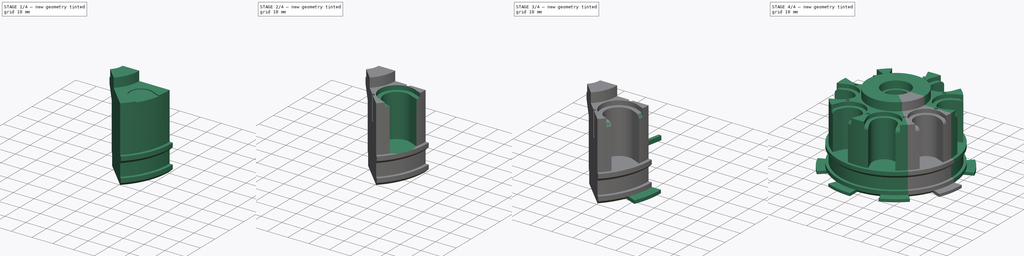
[diagram: build sequence overview — one tinted view per stage of 4, left to right]
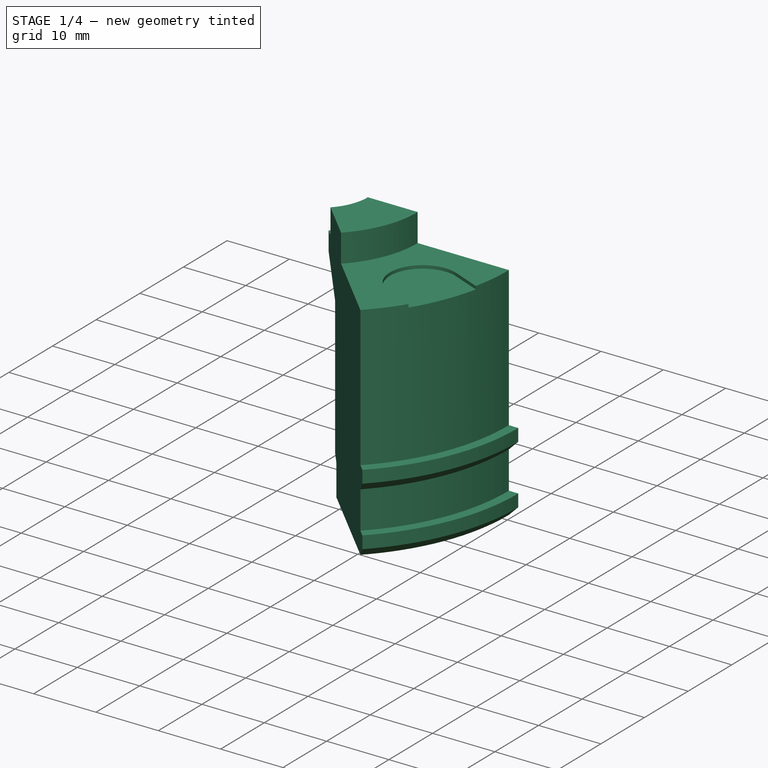
[diagram: stage 1 of 4 — iso view after this stage's code; geometry added in this stage tinted green]
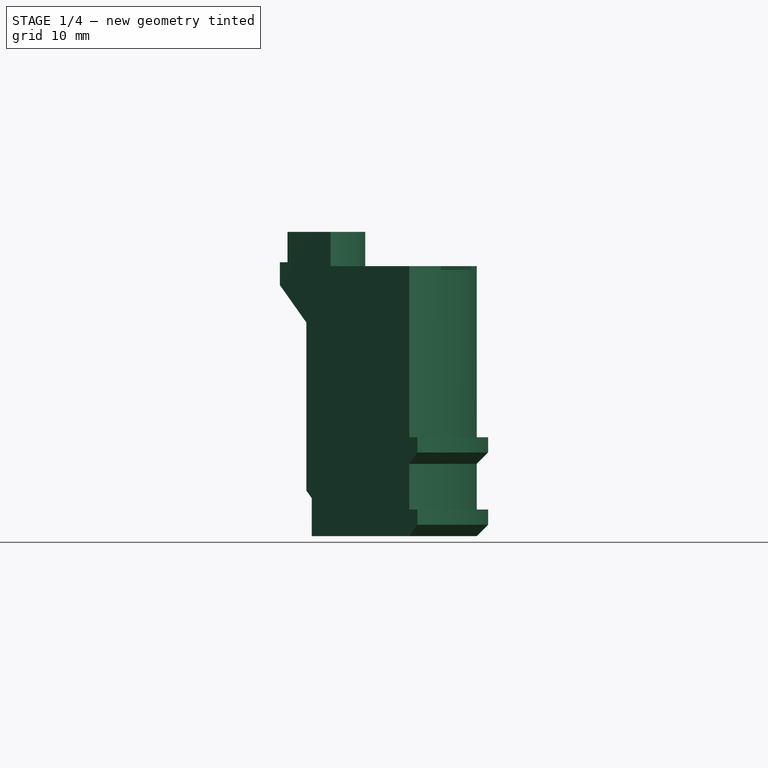
[diagram: stage 1 of 4 — front view after this stage's code; geometry added in this stage tinted green]
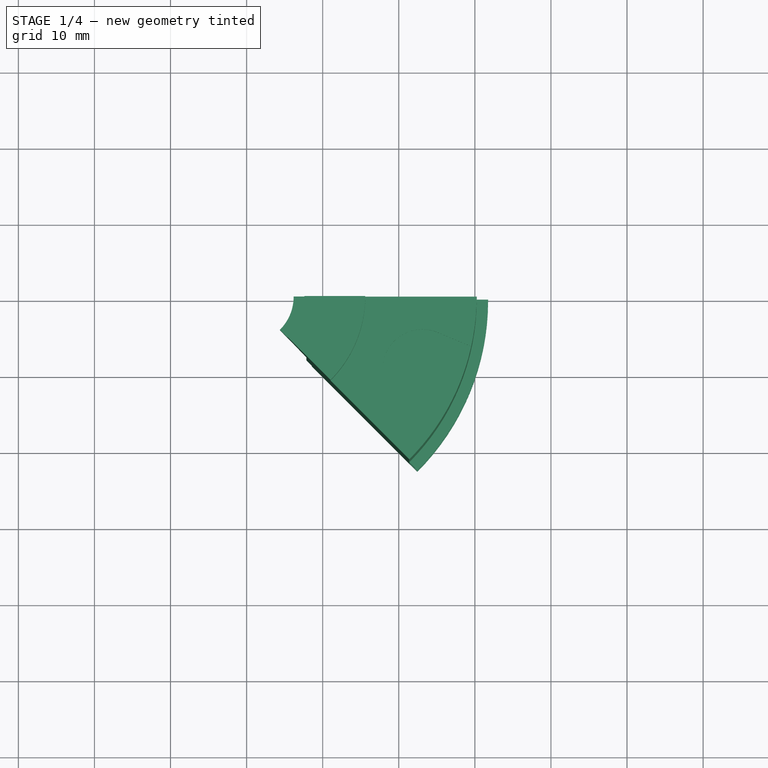
[diagram: stage 1 of 4 — top view after this stage's code; geometry added in this stage tinted green]
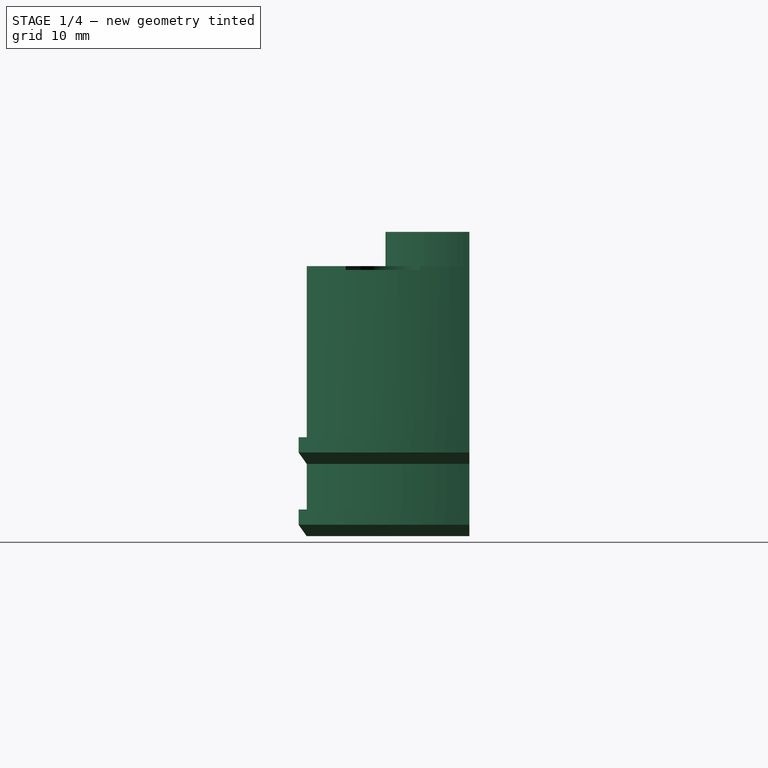
[diagram: stage 1 of 4 — right view after this stage's code; geometry added in this stage tinted green]
FCSTD DOCUMENT  (FreeCAD 0.19R22262 (Git))
Label: ToolChangerHolder_V2_Seg
License: All rights reserved
LicenseURL: http://en.wikipedia.org/wiki/All_rights_reserved
objects: Sketcher::SketchObject×6, PartDesign::Pocket×4, PartDesign::Plane×2, PartDesign::Revolution×1, PartDesign::Pad×1, Part::Box×1, PartDesign::Fillet×1, PartDesign::Body×1, Part::FeaturePython×1, Part::Cut×1
note: 25 computed .brp shape members not serialized (recipe doc carries the construction recipe); baked Part::Feature solids carry a one-line shape summary decoded from their .brp

FEATURE [Sketcher::SketchObject] Sketch
  MapMode = 5
  Placement = pos=(0,0,0) rot=(1,0,0;1.5708rad)
  Support = -> [XZ_Plane]
  sketch-geometry (19):
    g0: LineSegment StartX=12.1 StartY=0 StartZ=0 EndX=12.1 EndY=5 EndZ=0
    g1: LineSegment StartX=12.1 StartY=5 StartZ=0 EndX=11.1 EndY=6 EndZ=0
    g2: LineSegment StartX=6.18579 StartY=36 StartZ=0 EndX=7.6 EndY=36 EndZ=0
    g3: LineSegment StartX=7.6 StartY=36 StartZ=0 EndX=7.6 EndY=40 EndZ=0
    g4: LineSegment StartX=30.24 StartY=35.5 StartZ=0 EndX=30.24 EndY=13 EndZ=0
    g5: LineSegment StartX=30.24 StartY=13 StartZ=0 EndX=31.74 EndY=13 EndZ=0
    g6: LineSegment StartX=31.74 StartY=13 StartZ=0 EndX=31.74 EndY=11 EndZ=0
    g7: LineSegment StartX=31.74 StartY=11 StartZ=0 EndX=30.24 EndY=9.5 EndZ=0
    g8: LineSegment StartX=30.24 StartY=9.5 StartZ=0 EndX=30.24 EndY=3.5 EndZ=0
    g9: LineSegment StartX=31.74 StartY=3.5 StartZ=0 EndX=31.74 EndY=1.5 EndZ=0
    g10: LineSegment StartX=31.74 StartY=1.5 StartZ=0 EndX=30.24 EndY=0 EndZ=0
    g11: LineSegment StartX=30.24 StartY=0 StartZ=0 EndX=12.1 EndY=0 EndZ=0
    g12: LineSegment StartX=30.24 StartY=3.5 StartZ=0 EndX=31.74 EndY=3.5 EndZ=0
    g13: LineSegment StartX=6.18579 StartY=36 StartZ=0 EndX=6.18579 EndY=33 EndZ=0
    g14: LineSegment StartX=6.18579 StartY=33 StartZ=0 EndX=11.1 EndY=28.0858 EndZ=0
    g15: LineSegment StartX=11.1 StartY=28.0858 StartZ=0 EndX=11.1 EndY=6 EndZ=0
    g16: LineSegment StartX=7.6 StartY=40 StartZ=0 EndX=15.6 EndY=40 EndZ=0
    g17: LineSegment StartX=15.6 StartY=40 StartZ=0 EndX=15.6 EndY=35.5 EndZ=0
    g18: LineSegment StartX=15.6 StartY=35.5 StartZ=0 EndX=30.24 EndY=35.5 EndZ=0
  constraints (57):
    c: PointOnObject(g0,g-1)
    c: Vertical(g0)
    c: Coincident(g0,g1)
    c: Horizontal(g2)
    c: Coincident(g2,g3)
    c: Vertical(g3)
    c: Vertical(g4)
    c: Coincident(g4,g5)
    c: Coincident(g5,g6)
    c: Coincident(g6,g7)
    c: Coincident(g7,g8)
    c: Vertical(g8)
    c: Coincident(g9,g10)
    c: PointOnObject(g11,g-1)
    c: Coincident(g11,g0)
    c: Coincident(g12,g8)
    c: Coincident(g12,g9)
    c: Horizontal(g12)
    c: Vertical(g9)
    c: Vertical(g6)
    c: Horizontal(g5)
    c: Vertical(g10,g8)
    c: Vertical(g8,g4)
    c: Equal(g9,g6)
    c: DistanceY(g8,g8) = 6
    c: DistanceY(g6,g6) = 2
    c: DistanceX(g10,g10) = 1.5
    c: DistanceX(g1,g1) = 1
    c: Equal(g1,g2)
    c: DistanceY(g3,g3) = 4
    c: DistanceY(g-1,g3) = 40
    c: Coincident(g2,g13)
    c: Vertical(g13)
    c: Coincident(g13,g14)
    c: Coincident(g14,g15)
    c: Coincident(g15,g1)
    c: Vertical(g15)
    c: DistanceY(g13,g13) = 3
    c: DistanceX(g-1,g11) = 30.24
    c: DistanceX(g-1,g3) = 7.6
    c: DistanceX(g-1,g0) = 12.1
    c: Coincident(g3,g16)
    c: Horizontal(g16)
    c: Coincident(g16,g17)
    c: Coincident(g17,g18)
    c: Coincident(g18,g4)
    c: Horizontal(g18)
    c: Vertical(g17)
    c: DistanceY(g17,g17) = 4.5
    c: DistanceX(g16,g16) = 8
    c: Angle(g1,g-1) = 0.785398
    c: Equal(g12,g5)
    c: Angle(g7,g-1) = 2.35619
    c: Coincident(g10,g11)
    c: Parallel(g10,g7)
    c: DistanceY(g0,g0) = 5
    c: Parallel(g14,g1)
FEATURE [PartDesign::Revolution] Revolution
  Angle = 45
  Axis = (0,2e-16,1)
  Base = (0,0,0)
  Placement = pos=(0,0,0) rot=(1,0,0;1.5708rad)
  Profile = -> Sketch
  ReferenceAxis = -> Sketch [V_Axis]
  Refine = true
  Reversed = true
FEATURE [PartDesign::Plane] DatumPlane
  Length = 72.0454
  MapMode = 5
  Placement = pos=(0,2.66e-14,40) rot=(0,0,1;3.14159rad)
  ResizeMode = 0
  Support = -> [Revolution]
  Width = 61.0454
FEATURE [Sketcher::SketchObject] Sketch001
  MapMode = 5
  Placement = pos=(0,2.66e-14,40) rot=(0,0,1;3.14159rad)
  Support = -> [DatumPlane]
  expr: Constraints[2] = 180 - 22.5
  sketch-geometry (6):
    g0: LineSegment [constr] StartX=0 StartY=0 StartZ=0 EndX=-31.4119 EndY=13.0112 EndZ=0
    g1: ArcOfCircle CenterX=-23.097 CenterY=9.56709 CenterZ=0 NormalX=0 NormalY=0 NormalZ=1 AngleXU=0 Radius=5.25 StartAngle=4.31969 EndAngle=7.46128
    g2: LineSegment StartX=-21.0879 StartY=14.4175 StartZ=0 EndX=-29.4028 EndY=17.8616 EndZ=0
    g3: LineSegment StartX=-29.4028 StartY=17.8616 StartZ=0 EndX=-33.421 EndY=8.16087 EndZ=0
    g4: LineSegment StartX=-33.421 StartY=8.16087 StartZ=0 EndX=-25.1061 EndY=4.71672 EndZ=0
    g5: LineSegment [constr] StartX=-25.1061 StartY=4.71672 StartZ=0 EndX=-21.0879 EndY=14.4175 EndZ=0
  constraints (17):
    c: Coincident(g0,g-1)
    c: Distance(g0) = 34
    c: Angle(g-1,g0) = 2.74889
    c: PointOnObject(g1,g0)
    c: Tangent(g1,g2) = -1.5708
    c: Coincident(g2,g3)
    c: Coincident(g3,g4)
    c: Coincident(g4,g1)
    c: Coincident(g5,g1)
    c: Coincident(g5,g1)
    c: PointOnObject(g1,g5)
    c: Perpendicular(g0,g5)
    c: Parallel(g4,g2)
    c: Perpendicular(g2,g3)
    c: Diameter(g1) = 10.5
    c: PointOnObject(g0,g3)
    c: Distance(g-1,g1) = 25
FEATURE [PartDesign::Pocket] Pocket
  BaseFeature = -> Revolution
  Length = 5
  Length2 = 100
  Placement = pos=(0,0,0) rot=(1,0,0;1.5708rad)
  Profile = -> Sketch001
  Refine = true
  Type = 0
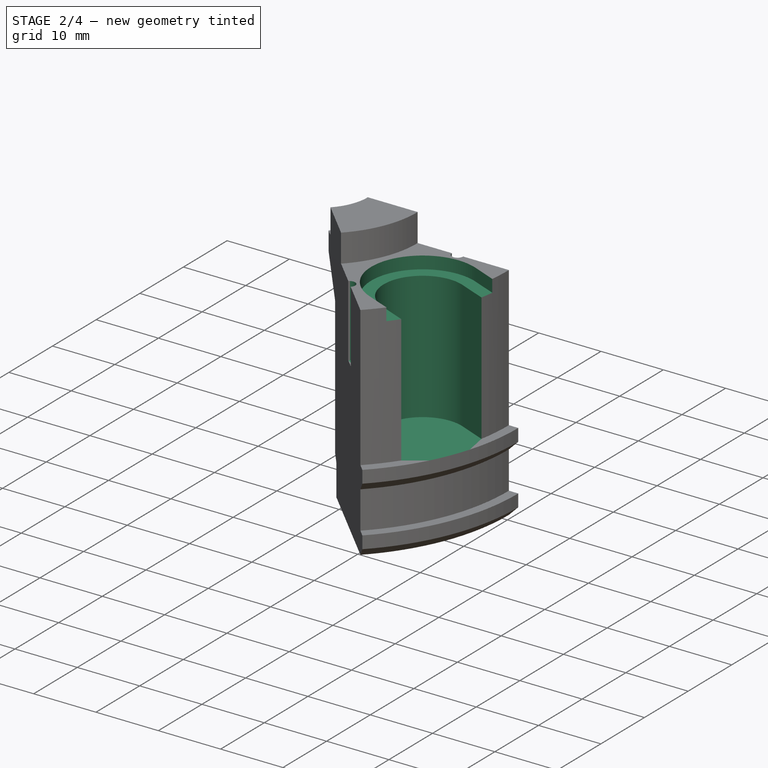
[diagram: stage 2 of 4 — iso view after this stage's code; geometry added in this stage tinted green]
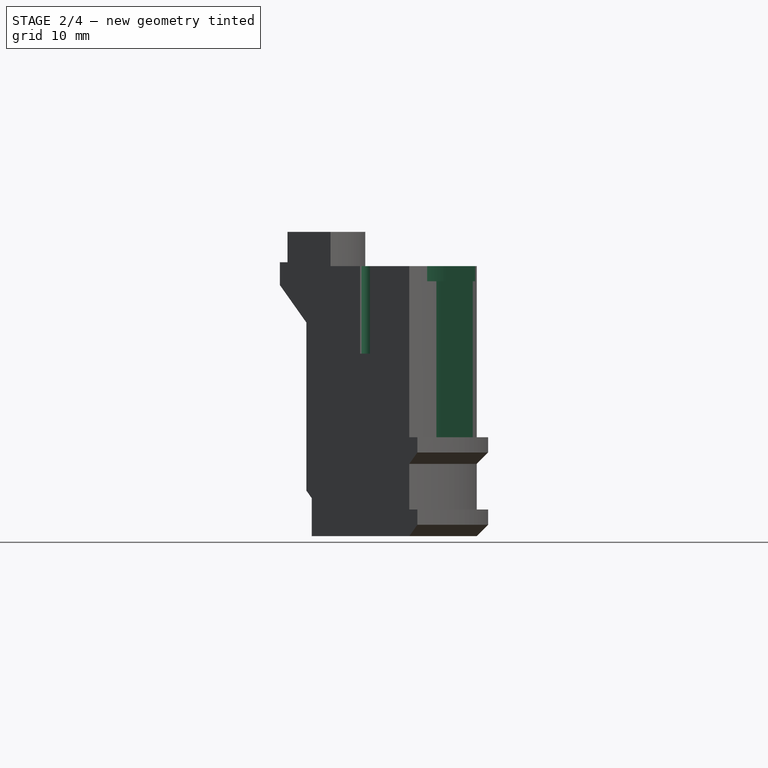
[diagram: stage 2 of 4 — front view after this stage's code; geometry added in this stage tinted green]
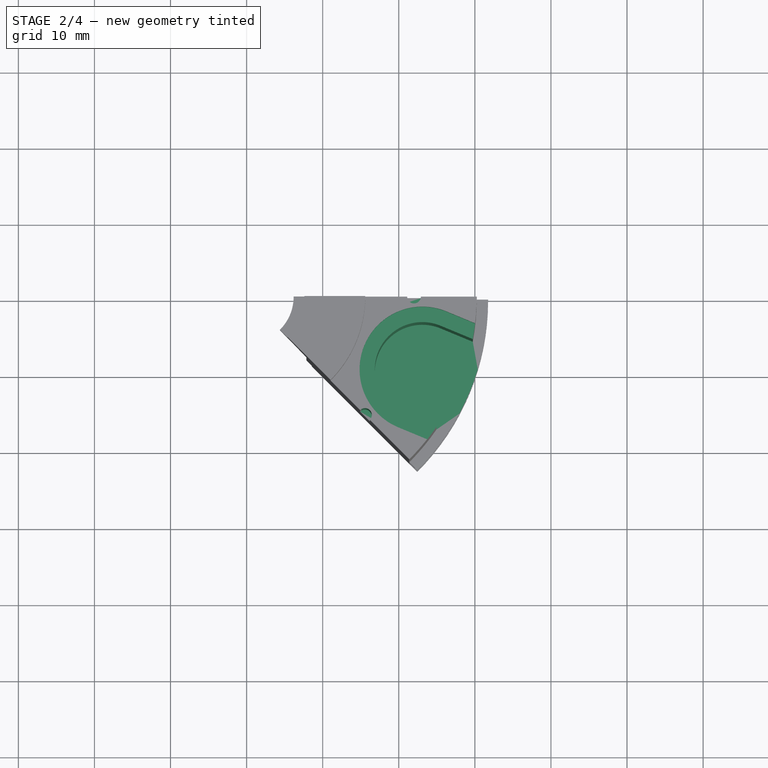
[diagram: stage 2 of 4 — top view after this stage's code; geometry added in this stage tinted green]
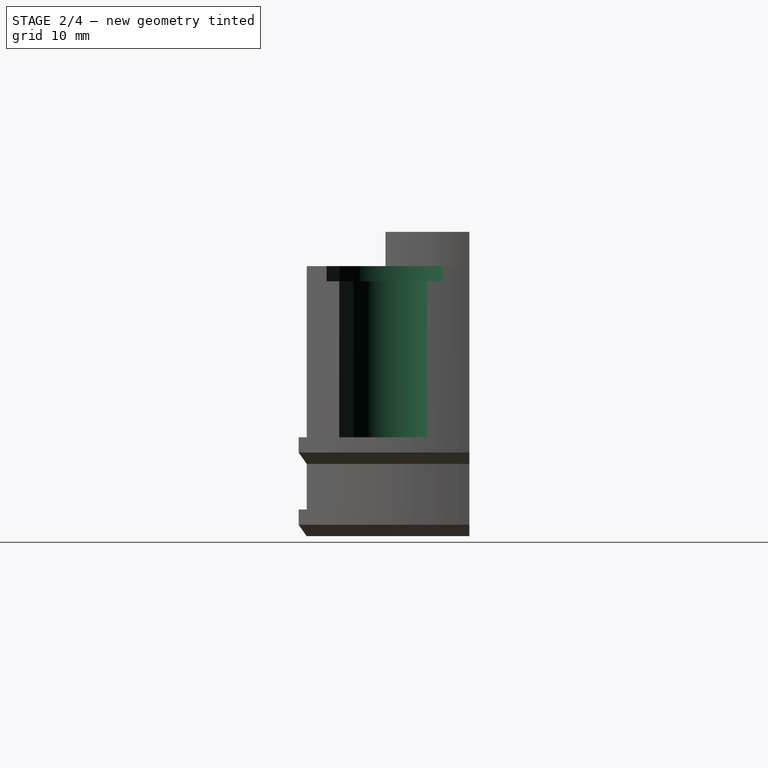
[diagram: stage 2 of 4 — right view after this stage's code; geometry added in this stage tinted green]
FEATURE [Sketcher::SketchObject] Sketch002
  AttachmentOffset = pos=(0,0,-4.5) rot=(0,0,1;0rad)
  MapMode = 5
  Placement = pos=(0,2.36e-14,35.5) rot=(0,0,1;3.14159rad)
  Support = -> [DatumPlane]
  expr: Constraints[2] = 180 - 22.5
  sketch-geometry (6):
    g0: LineSegment [constr] StartX=0 StartY=0 StartZ=0 EndX=-31.4119 EndY=13.0112 EndZ=0
    g1: ArcOfCircle CenterX=-23.097 CenterY=9.56709 CenterZ=0 NormalX=0 NormalY=0 NormalZ=1 AngleXU=0 Radius=8.25 StartAngle=4.31969 EndAngle=7.46128
    g2: LineSegment StartX=-19.9398 StartY=17.1891 StartZ=0 EndX=-28.2548 EndY=20.6332 EndZ=0
    g3: LineSegment StartX=-28.2548 StartY=20.6332 StartZ=0 EndX=-34.569 EndY=5.38923 EndZ=0
    g4: LineSegment StartX=-34.569 StartY=5.38923 StartZ=0 EndX=-26.2541 EndY=1.94508 EndZ=0
    g5: LineSegment [constr] StartX=-26.2541 StartY=1.94508 StartZ=0 EndX=-19.9398 EndY=17.1891 EndZ=0
  constraints (17):
    c: Coincident(g0,g-1)
    c: Distance(g0) = 34
    c: Angle(g-1,g0) = 2.74889
    c: PointOnObject(g1,g0)
    c: Tangent(g1,g2) = -1.5708
    c: Coincident(g2,g3)
    c: Coincident(g3,g4)
    c: Coincident(g4,g1)
    c: Coincident(g5,g1)
    c: Coincident(g5,g1)
    c: PointOnObject(g1,g5)
    c: Perpendicular(g0,g5)
    c: Parallel(g4,g2)
    c: Perpendicular(g2,g3)
    c: Diameter(g1) = 16.5
    c: PointOnObject(g0,g3)
    c: Distance(g-1,g1) = 25
FEATURE [Sketcher::SketchObject] Sketch003
  AttachmentOffset = pos=(0,0,-5) rot=(0,0,1;0rad)
  MapMode = 5
  Placement = pos=(0,2.33e-14,35) rot=(0,0,1;3.14159rad)
  Support = -> [DatumPlane]
  expr: Constraints[2] = 180 - 22.5
  sketch-geometry (6):
    g0: LineSegment [constr] StartX=0 StartY=0 StartZ=0 EndX=-31.4119 EndY=13.0112 EndZ=0
    g1: ArcOfCircle CenterX=-23.097 CenterY=9.56709 CenterZ=0 NormalX=0 NormalY=0 NormalZ=1 AngleXU=0 Radius=6.25 StartAngle=4.31969 EndAngle=7.46128
    g2: LineSegment StartX=-20.7052 StartY=15.3413 StartZ=0 EndX=-29.0201 EndY=18.7855 EndZ=0
    g3: LineSegment StartX=-29.0201 StartY=18.7855 StartZ=0 EndX=-33.8037 EndY=7.23699 EndZ=0
    g4: LineSegment StartX=-33.8037 StartY=7.23699 StartZ=0 EndX=-25.4888 EndY=3.79284 EndZ=0
    g5: LineSegment [constr] StartX=-25.4888 StartY=3.79284 StartZ=0 EndX=-20.7052 EndY=15.3413 EndZ=0
  constraints (17):
    c: Coincident(g0,g-1)
    c: Distance(g0) = 34
    c: Angle(g-1,g0) = 2.74889
    c: PointOnObject(g1,g0)
    c: Tangent(g1,g2) = -1.5708
    c: Coincident(g2,g3)
    c: Coincident(g3,g4)
    c: Coincident(g4,g1)
    c: Coincident(g5,g1)
    c: Coincident(g5,g1)
    c: PointOnObject(g1,g5)
    c: Perpendicular(g0,g5)
    c: Parallel(g4,g2)
    c: Perpendicular(g2,g3)
    c: Diameter(g1) = 12.5
    c: PointOnObject(g0,g3)
    c: Distance(g-1,g1) = 25
FEATURE [PartDesign::Pocket] Pocket001
  BaseFeature = -> Pocket
  Length = 2
  Length2 = 100
  Placement = pos=(0,0,0) rot=(1,0,0;1.5708rad)
  Profile = -> Sketch002
  Refine = true
  Type = 0
FEATURE [PartDesign::Pocket] Pocket002
  BaseFeature = -> Pocket001
  Length = 22
  Length2 = 100
  Placement = pos=(0,0,0) rot=(1,0,0;1.5708rad)
  Profile = -> Sketch003
  Refine = true
  Type = 0
FEATURE [Sketcher::SketchObject] Sketch004
  MapMode = 5
  Placement = pos=(0,2.66e-14,40) rot=(0,0,1;3.14159rad)
  Support = -> [DatumPlane]
  sketch-geometry (3):
    g0: Circle CenterX=-22 CenterY=2.7e-15 CenterZ=0 NormalX=0 NormalY=0 NormalZ=1 AngleXU=0 Radius=0.9
    g1: Circle CenterX=-15.5563 CenterY=15.5563 CenterZ=0 NormalX=0 NormalY=0 NormalZ=1 AngleXU=0 Radius=0.9
    g2: ArcOfCircle [constr] CenterX=0 CenterY=0 CenterZ=0 NormalX=0 NormalY=0 NormalZ=1 AngleXU=0 Radius=22 StartAngle=2.35619 EndAngle=3.14159
  constraints (8):
    c: Diameter(g0) = 1.8
    c: Equal(g1,g0)
    c: PointOnObject(g0,g-1)
    c: Coincident(g2,g-1)
    c: Coincident(g2,g0)
    c: Coincident(g2,g1)
    c: Angle(g2) = 0.785398
    c: Radius(g2) = 22
FEATURE [PartDesign::Pocket] Pocket003
  BaseFeature = -> Pocket002
  Length = 16
  Length2 = 100
  Placement = pos=(0,0,0) rot=(1,0,0;1.5708rad)
  Profile = -> Sketch004
  Refine = true
  Type = 0
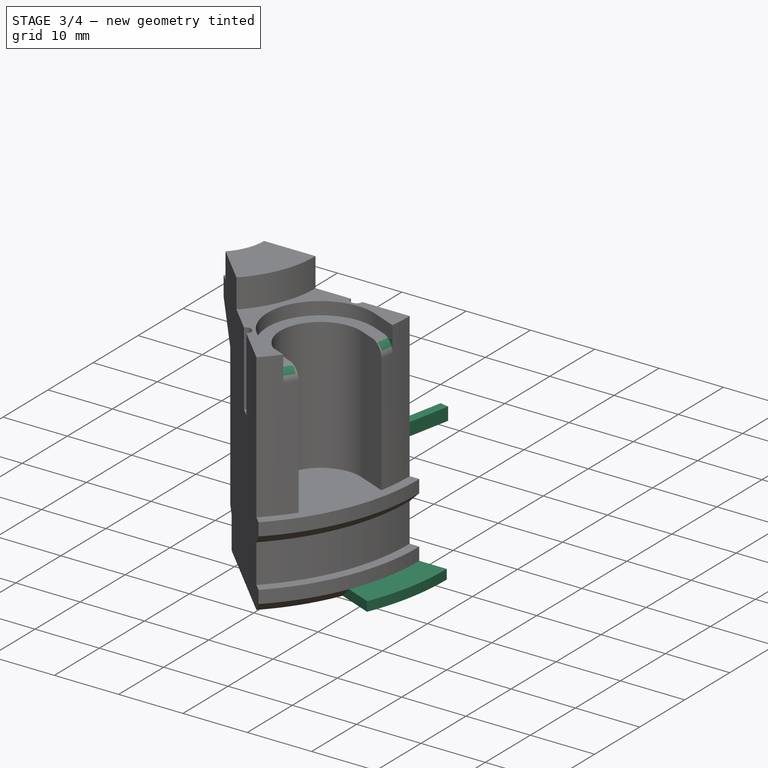
[diagram: stage 3 of 4 — iso view after this stage's code; geometry added in this stage tinted green]
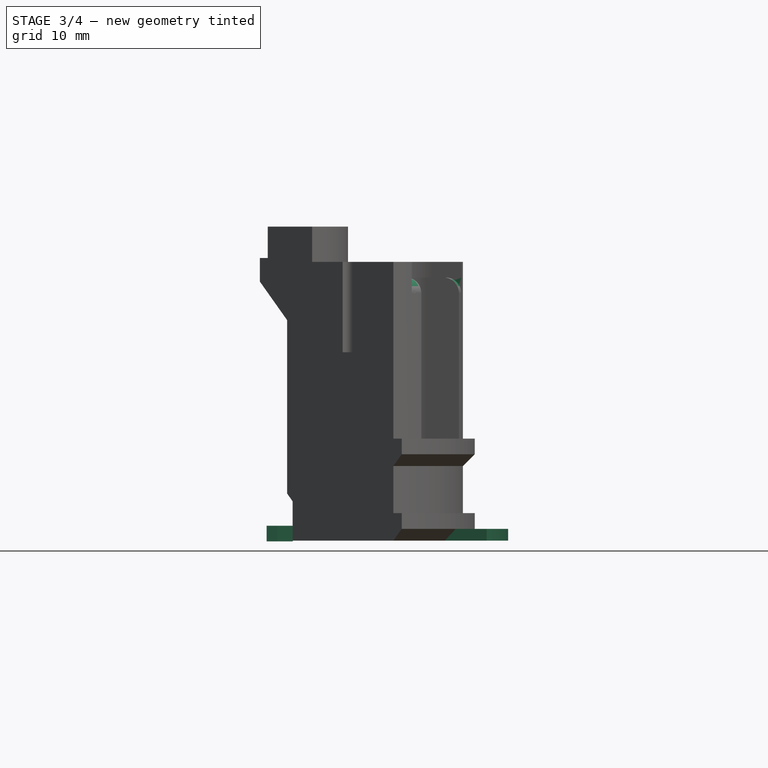
[diagram: stage 3 of 4 — front view after this stage's code; geometry added in this stage tinted green]
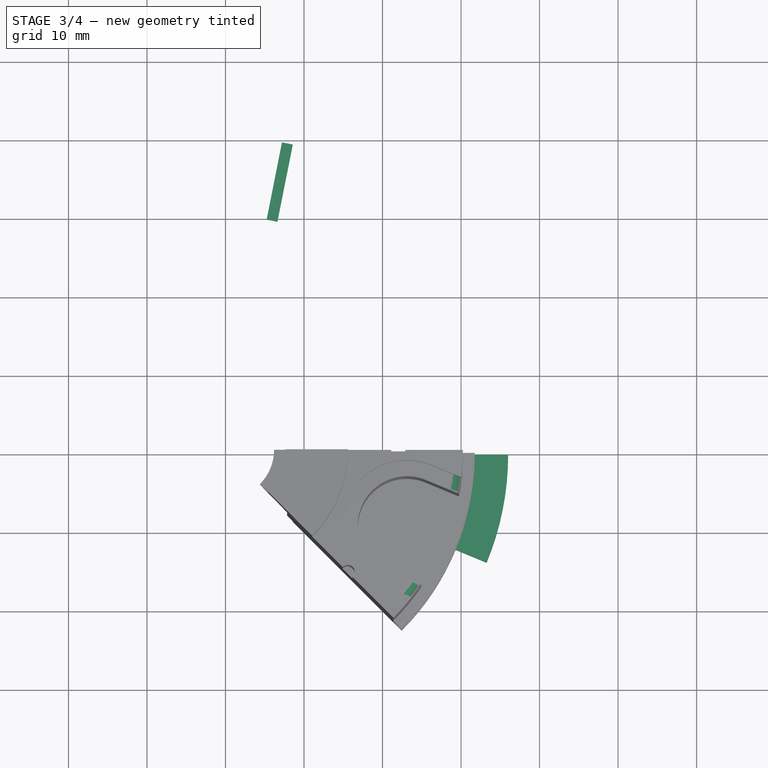
[diagram: stage 3 of 4 — top view after this stage's code; geometry added in this stage tinted green]
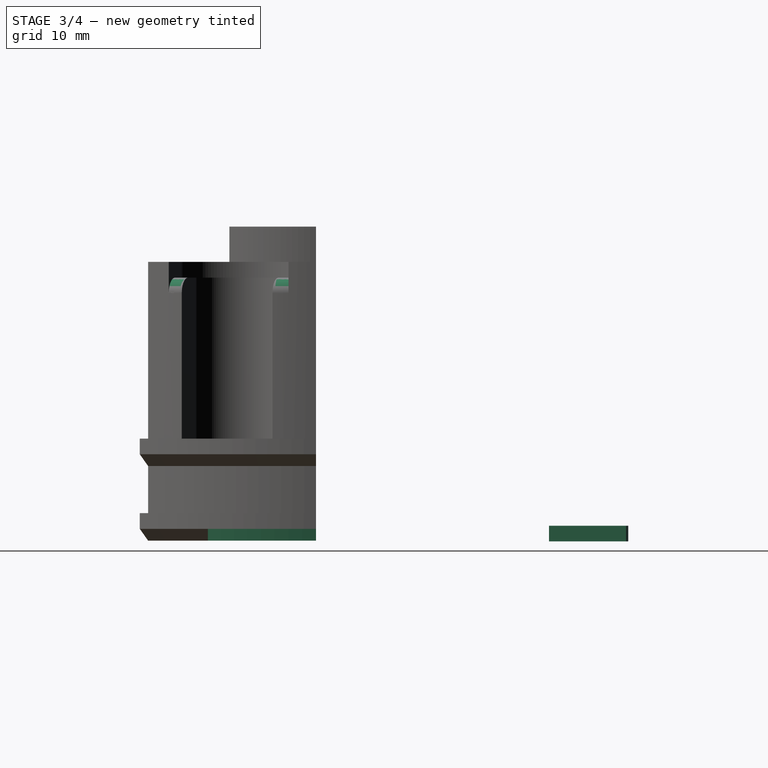
[diagram: stage 3 of 4 — right view after this stage's code; geometry added in this stage tinted green]
FEATURE [PartDesign::Plane] DatumPlane001
  Length = 72.0454
  MapMode = 5
  Placement = pos=(0,0,0) rot=(1,0,0;3.14159rad)
  ResizeMode = 0
  Support = -> [Pocket003]
  Width = 61.0454
FEATURE [Sketcher::SketchObject] Sketch005
  MapMode = 5
  Placement = pos=(0,0,0) rot=(1,0,0;3.14159rad)
  Support = -> [DatumPlane001]
  sketch-geometry (4):
    g0: ArcOfCircle CenterX=0 CenterY=0 CenterZ=0 NormalX=0 NormalY=0 NormalZ=1 AngleXU=0 Radius=29 StartAngle=0 EndAngle=0.392699
    g1: ArcOfCircle CenterX=0 CenterY=0 CenterZ=0 NormalX=0 NormalY=0 NormalZ=1 AngleXU=0 Radius=36 StartAngle=0 EndAngle=0.392699
    g2: LineSegment StartX=29 StartY=0 StartZ=0 EndX=36 EndY=0 EndZ=0
    g3: LineSegment StartX=26.7925 StartY=11.0978 StartZ=0 EndX=33.2597 EndY=13.7766 EndZ=0
  constraints (12):
    c: Coincident(g0,g-1)
    c: PointOnObject(g0,g-1)
    c: Coincident(g1,g0)
    c: PointOnObject(g1,g-1)
    c: Coincident(g2,g0)
    c: Coincident(g2,g1)
    c: Coincident(g3,g0)
    c: Coincident(g3,g1)
    c: Perpendicular(g0,g3)
    c: Angle(g2,g3) = 0.392699
    c: DistanceX(g0,g0) = 29
    c: DistanceX(g0,g1) = 36
FEATURE [PartDesign::Pad] Pad
  BaseFeature = -> Pocket003
  Length = 1.5
  Length2 = 100
  Placement = pos=(0,0,0) rot=(1,0,0;1.5708rad)
  Profile = -> Sketch005
  Refine = true
  Reversed = true
  Type = 0
FEATURE [Part::Box] Box  label="Cube"
  AttacherType = Attacher::AttachEngine3D
  Height = 2
  Length = 1.4
  Placement = pos=(5.2442,29.9524,-0.1) rot=(0,0,-1;0.19635rad)
  Width = 10
FEATURE [PartDesign::Fillet] Fillet
  Base = -> Pad [Edge63,Edge83]
  BaseFeature = -> Pad
  Placement = pos=(0,0,0) rot=(1,0,0;1.5708rad)
  Radius = 2
  Refine = true
  SupportTransform = false
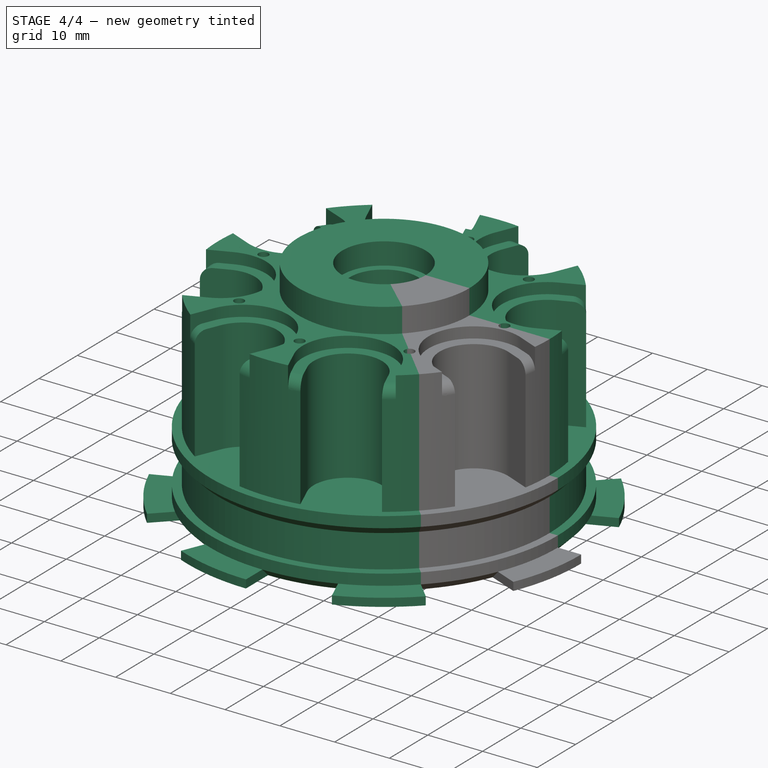
[diagram: stage 4 of 4 — iso view after this stage's code; geometry added in this stage tinted green]
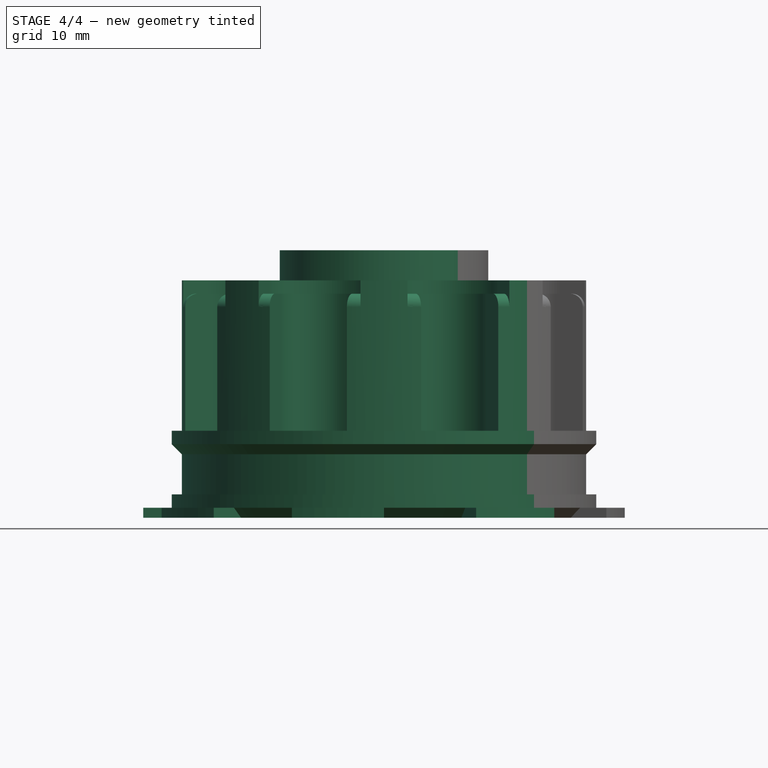
[diagram: stage 4 of 4 — front view after this stage's code; geometry added in this stage tinted green]
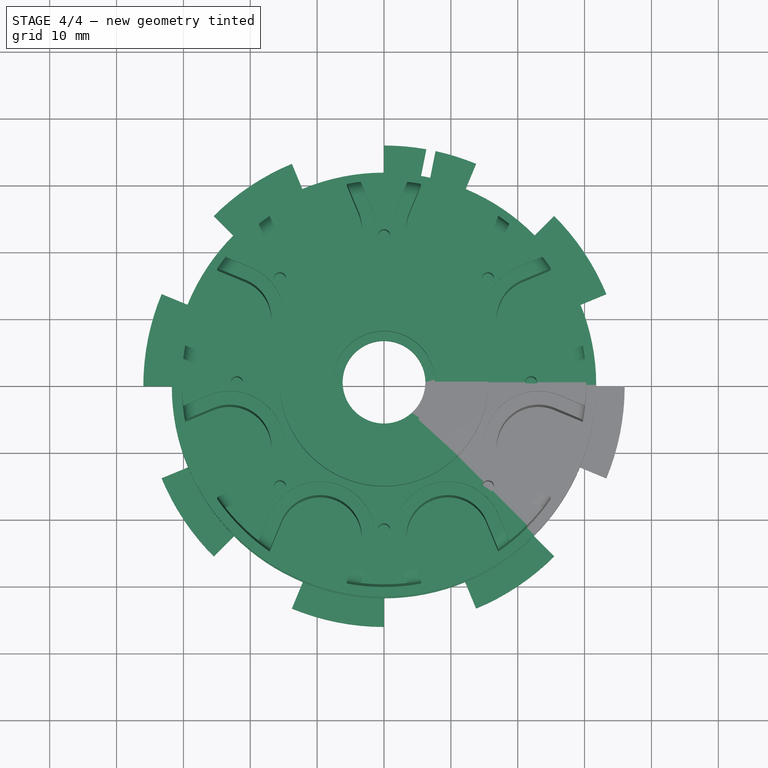
[diagram: stage 4 of 4 — top view after this stage's code; geometry added in this stage tinted green]
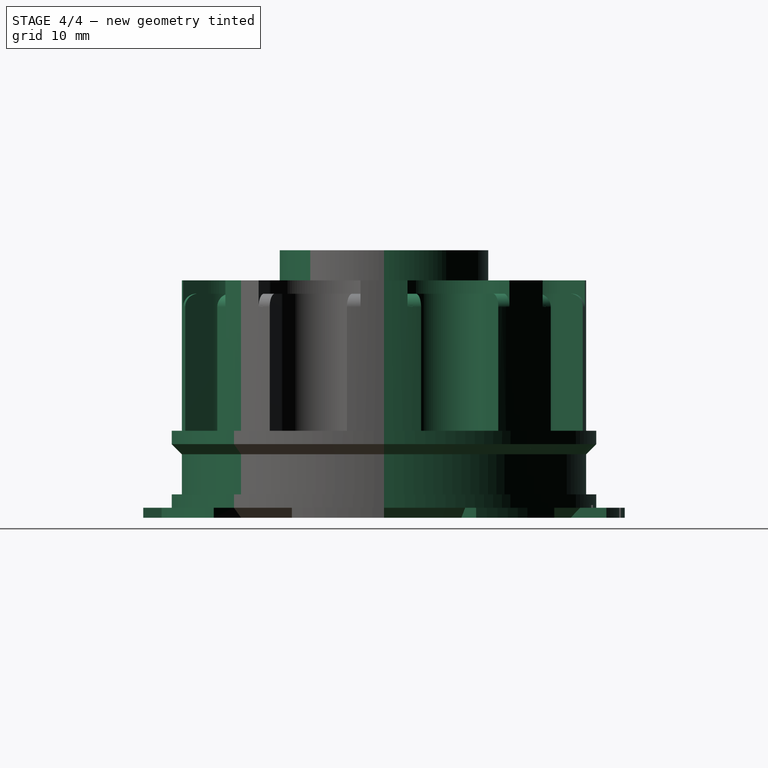
[diagram: stage 4 of 4 — right view after this stage's code; geometry added in this stage tinted green]
FEATURE [PartDesign::Body] Body
  Group = -> [Sketch,Revolution,DatumPlane,Sketch001,Pocket,Sketch002,Pocket001,Pocket002,Sketch004,Pocket003,DatumPlane001,Sketch005,Pad,Fillet]
  Origin = -> Origin
  Tip = -> Fillet
FEATURE [Part::FeaturePython] Array  # Draft array (typed FeaturePython)
  Angle = 360
  ArrayType = 1
  Axis = (0,0,1)
  Base = -> Body
  Center = (0,0,0)
  Count = 8
  ExpandArray = false
  Fuse = false
  IntervalAxis = (0,0,0)
  IntervalX = (50,0,0)
  IntervalY = (0,50,0)
  IntervalZ = (0,0,50)
  NumberCircles = 3
  NumberPolar = 8
  NumberX = 2
  NumberY = 2
  NumberZ = 1
  PlacementList = 8 placements: [(0,0,0),(0,0,0),(0,0,0),(0,0,0),(0,0,0),(0,0,0),(0,0,0),(0,0,0)]
  RadialDistance = 50
  ScaleList = (8) [(1,1,1),(1,1,1),(1,1,1),(1,1,1),(1,1,1),(1,1,1),(1,1,1),(1,1,1)]
  Symmetry = 1
  TangentialDistance = 25
FEATURE [Part::Cut] Cut
  Base = -> Array
  Tool = -> Box
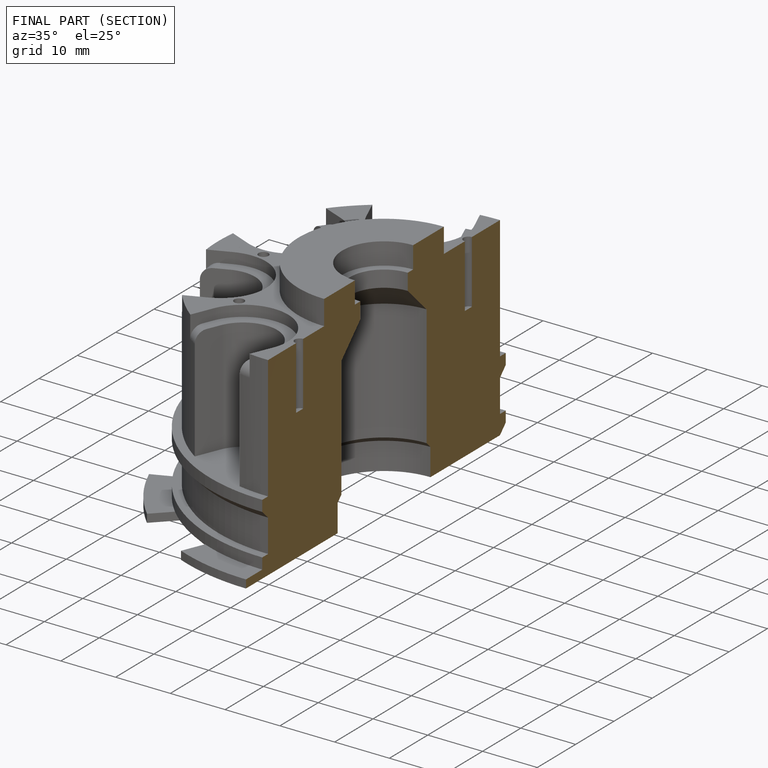
[diagram: finished part — half-section view (interior)]
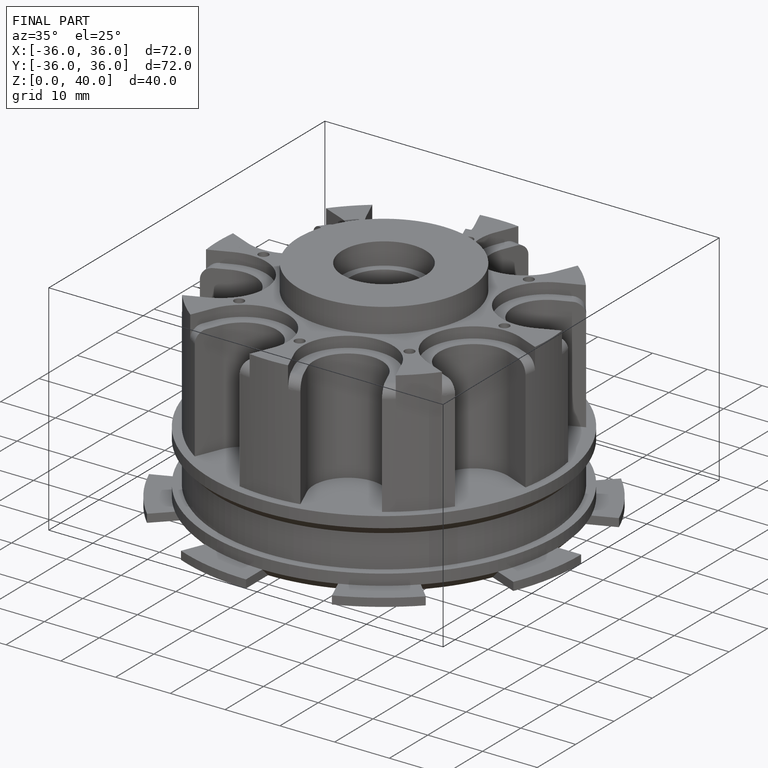
[diagram: finished part — iso view with bounding-box wireframe]
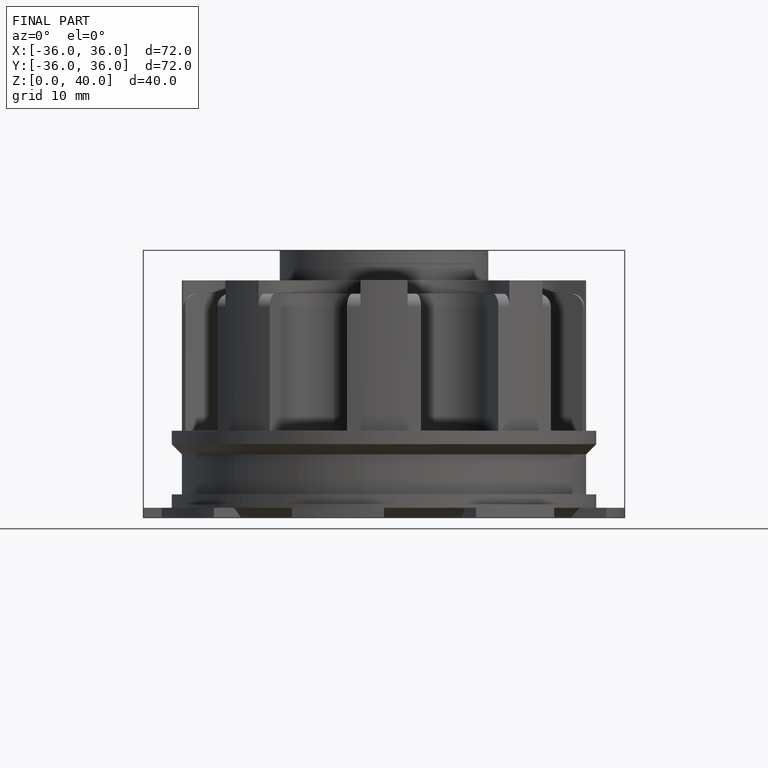
[diagram: finished part — front view with bounding-box wireframe]
